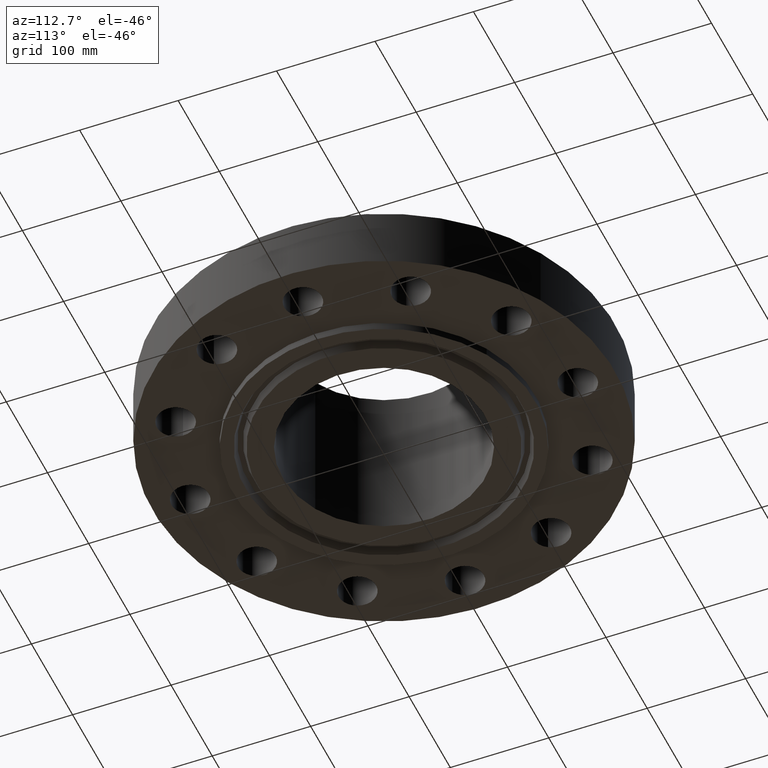
[diagram: clean part render]
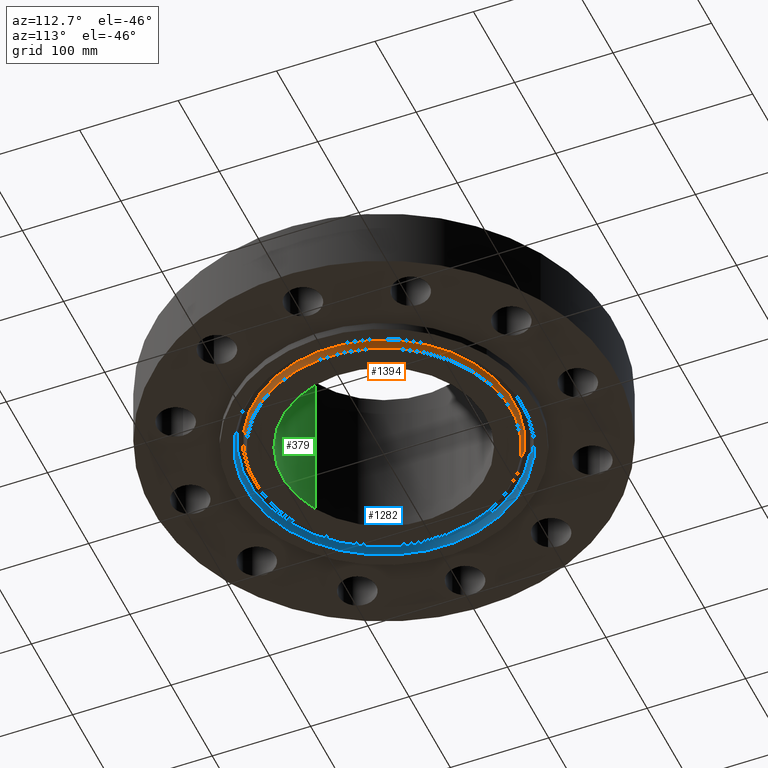
[diagram: same view with three faces highlighted in distinct colors, each labeled with its STEP entity id]
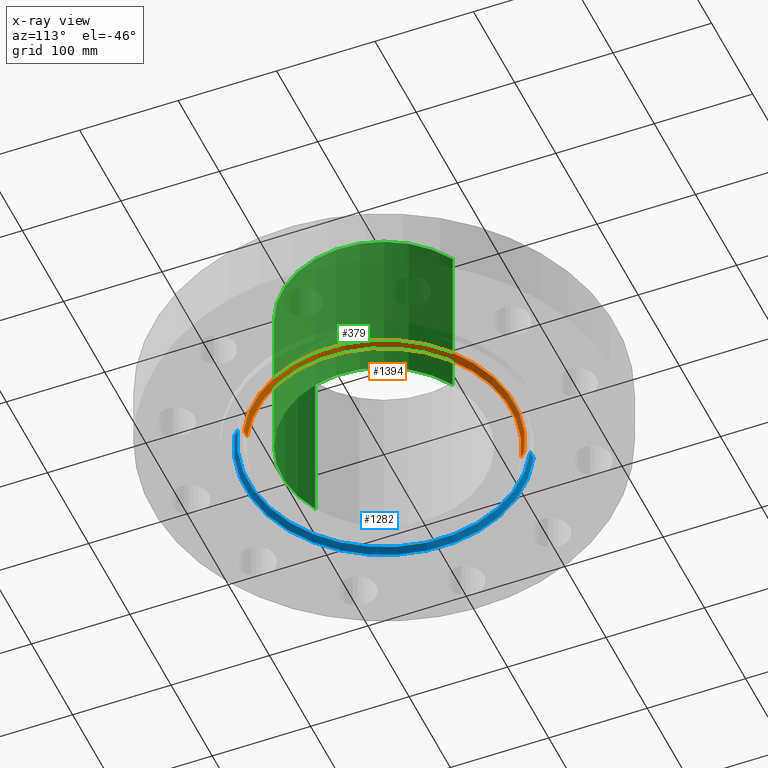
[diagram: x-ray of the same camera — body ghosted, the three highlighted faces saturated]
A machine part, auxiliary view with three faces highlighted in distinct colors.
The next image is the same camera in x-ray (body ghosted, the three faces saturated) — at least one of them is partly hidden behind the body in this view.
Their STEP definitions:

[orange] entity #1394 — the highlighted conical surface has half-angle 23 deg.
#1200=AXIS2_PLACEMENT_3D('Circle Axis2P3D',#1198,#1199,$) ;
#1344=AXIS2_PLACEMENT_3D('Circle Axis2P3D',#1342,#1343,$) ;
#1376=AXIS2_PLACEMENT_3D('Cone Axis2P3D',#1373,#1374,#1375) ;
#1198=CARTESIAN_POINT('Axis2P3D Location',(0.,-5.59482469102E-016,-0.312500000001)) ;
#1202=CARTESIAN_POINT('Vertex',(-2.4345708276,4.45645200755,-0.312500000001)) ;
#1204=CARTESIAN_POINT('Vertex',(2.4345708276,-4.45645200755,-0.312500000001)) ;
#1339=CARTESIAN_POINT('Vertex',(2.49428500255,-4.56575807162,-0.0190701156784)) ;
#1342=CARTESIAN_POINT('Axis2P3D Location',(0.,0.,-0.0190701156784)) ;
#1346=CARTESIAN_POINT('Vertex',(-2.49428500255,4.56575807162,-0.0190701156784)) ;
#1373=CARTESIAN_POINT('Axis2P3D Location',(0.,0.,-0.372500000001)) ;
#1378=CARTESIAN_POINT('Line Origine',(-2.46442791507,4.51110503958,-0.16578505784)) ;
#1383=CARTESIAN_POINT('Line Origine',(2.46442791507,-4.51110503958,-0.16578505784)) ;
#1199=DIRECTION('Axis2P3D Direction',(0.,0.,-0.0393700787402)) ;
#1343=DIRECTION('Axis2P3D Direction',(0.,0.,0.0393700787402)) ;
#1374=DIRECTION('Axis2P3D Direction',(0.,0.,0.0393700787402)) ;
#1375=DIRECTION('Axis2P3D XDirection',(-0.0188750212049,0.0345504945626,0.)) ;
#1379=DIRECTION('Vector Direction',(-0.00737505833565,0.0134999537303,0.0362403485611)) ;
#1384=DIRECTION('Vector Direction',(0.00737505833565,-0.0134999537303,0.0362403485611)) ;
#1380=VECTOR('Line Direction',#1379,0.0393700787402) ;
#1385=VECTOR('Line Direction',#1384,0.0393700787402) ;
#1389=ORIENTED_EDGE('',*,*,#1382,.F.) ;
#1390=ORIENTED_EDGE('',*,*,#1348,.F.) ;
#1391=ORIENTED_EDGE('',*,*,#1387,.T.) ;
#1392=ORIENTED_EDGE('',*,*,#1206,.F.) ;
#1394=ADVANCED_FACE('PartBody',(#1393),#1377,.T.) ;
#1201=CIRCLE('generated circle',#1200,5.07810000002) ;
#1345=CIRCLE('generated circle',#1344,5.20265359624) ;
#1377=CONICAL_SURFACE('Cone',#1376,5.05263151105,0.401425727959) ;
#1206=EDGE_CURVE('',#1203,#1205,#1201,.T.) ;
#1348=EDGE_CURVE('',#1340,#1347,#1345,.T.) ;
#1382=EDGE_CURVE('',#1347,#1203,#1381,.F.) ;
#1387=EDGE_CURVE('',#1340,#1205,#1386,.F.) ;
#1388=EDGE_LOOP('',(#1389,#1390,#1391,#1392)) ;
#1393=FACE_OUTER_BOUND('',#1388,.T.) ;
#1381=LINE('Line',#1378,#1380) ;
#1386=LINE('Line',#1383,#1385) ;
#1203=VERTEX_POINT('',#1202) ;
#1205=VERTEX_POINT('',#1204) ;
#1340=VERTEX_POINT('',#1339) ;
#1347=VERTEX_POINT('',#1346) ;

[blue] entity #1282 — the highlighted conical surface has half-angle 23 deg.
#1181=AXIS2_PLACEMENT_3D('Circle Axis2P3D',#1179,#1180,$) ;
#1228=AXIS2_PLACEMENT_3D('Circle Axis2P3D',#1226,#1227,$) ;
#1264=AXIS2_PLACEMENT_3D('Cone Axis2P3D',#1261,#1262,#1263) ;
#1179=CARTESIAN_POINT('Axis2P3D Location',(1.39870617276E-016,0.,-0.312500000001)) ;
#1183=CARTESIAN_POINT('Vertex',(2.65932552009,-4.86786271257,-0.312500000001)) ;
#1185=CARTESIAN_POINT('Vertex',(-2.65932552009,4.86786271257,-0.312500000001)) ;
#1226=CARTESIAN_POINT('Axis2P3D Location',(0.,0.,-0.0190701156784)) ;
#1230=CARTESIAN_POINT('Vertex',(-2.59961134514,4.75855664851,-0.0190701156784)) ;
#1232=CARTESIAN_POINT('Vertex',(2.59961134514,-4.75855664851,-0.0190701156784)) ;
#1261=CARTESIAN_POINT('Axis2P3D Location',(0.,0.,-0.0190701156784)) ;
#1266=CARTESIAN_POINT('Line Origine',(-2.62946843262,4.81320968054,-0.16578505784)) ;
#1271=CARTESIAN_POINT('Line Origine',(2.62946843262,-4.81320968054,-0.16578505784)) ;
#1180=DIRECTION('Axis2P3D Direction',(0.,0.,-0.0393700787402)) ;
#1227=DIRECTION('Axis2P3D Direction',(0.,0.,0.0393700787402)) ;
#1262=DIRECTION('Axis2P3D Direction',(-0.,-0.,-0.0393700787402)) ;
#1263=DIRECTION('Axis2P3D XDirection',(-0.0188750212049,0.0345504945626,0.)) ;
#1267=DIRECTION('Vector Direction',(-0.00737505833565,0.0134999537303,-0.0362403485611)) ;
#1272=DIRECTION('Vector Direction',(0.00737505833565,-0.0134999537303,-0.0362403485611)) ;
#1268=VECTOR('Line Direction',#1267,0.0393700787402) ;
#1273=VECTOR('Line Direction',#1272,0.0393700787402) ;
#1277=ORIENTED_EDGE('',*,*,#1187,.T.) ;
#1278=ORIENTED_EDGE('',*,*,#1270,.T.) ;
#1279=ORIENTED_EDGE('',*,*,#1234,.T.) ;
#1280=ORIENTED_EDGE('',*,*,#1275,.F.) ;
#1282=ADVANCED_FACE('PartBody',(#1281),#1265,.F.) ;
#1182=CIRCLE('generated circle',#1181,5.54690000002) ;
#1229=CIRCLE('generated circle',#1228,5.4223464038) ;
#1265=CONICAL_SURFACE('Cone',#1264,5.4223464038,0.401425727959) ;
#1187=EDGE_CURVE('',#1184,#1186,#1182,.T.) ;
#1234=EDGE_CURVE('',#1231,#1233,#1229,.T.) ;
#1270=EDGE_CURVE('',#1186,#1231,#1269,.F.) ;
#1275=EDGE_CURVE('',#1184,#1233,#1274,.F.) ;
#1276=EDGE_LOOP('',(#1277,#1278,#1279,#1280)) ;
#1281=FACE_OUTER_BOUND('',#1276,.T.) ;
#1269=LINE('Line',#1266,#1268) ;
#1274=LINE('Line',#1271,#1273) ;
#1184=VERTEX_POINT('',#1183) ;
#1186=VERTEX_POINT('',#1185) ;
#1231=VERTEX_POINT('',#1230) ;
#1233=VERTEX_POINT('',#1232) ;

[green] entity #379 — the highlighted cylindrical surface (partial cylindrical patch) has radius 103.188 mm, axis along (0, 0, -1).
#343=AXIS2_PLACEMENT_3D('Cylinder Axis2P3D',#340,#341,#342) ;
#347=AXIS2_PLACEMENT_3D('Circle Axis2P3D',#345,#346,$) ;
#363=AXIS2_PLACEMENT_3D('Circle Axis2P3D',#361,#362,$) ;
#340=CARTESIAN_POINT('Axis2P3D Location',(0.,0.,3.03375000001)) ;
#345=CARTESIAN_POINT('Axis2P3D Location',(0.,0.,6.38000000003)) ;
#349=CARTESIAN_POINT('Vertex',(1.94766625059,3.56517915769,6.38000000003)) ;
#351=CARTESIAN_POINT('Vertex',(-1.94766625059,-3.56517915769,6.38000000003)) ;
#354=CARTESIAN_POINT('Line Origine',(1.94766625059,3.56517915769,3.03375000001)) ;
#358=CARTESIAN_POINT('Vertex',(1.94766625059,3.56517915769,-0.312500000001)) ;
#361=CARTESIAN_POINT('Axis2P3D Location',(0.,0.,-0.312500000001)) ;
#365=CARTESIAN_POINT('Vertex',(-1.94766625059,-3.56517915769,-0.312500000001)) ;
#368=CARTESIAN_POINT('Line Origine',(-1.94766625059,-3.56517915769,3.03375000001)) ;
#341=DIRECTION('Axis2P3D Direction',(0.,0.,-0.0393700787402)) ;
#342=DIRECTION('Axis2P3D XDirection',(-0.0188750212049,-0.0345504945626,0.)) ;
#346=DIRECTION('Axis2P3D Direction',(0.,0.,-0.0393700787402)) ;
#355=DIRECTION('Vector Direction',(0.,0.,-0.0393700787402)) ;
#362=DIRECTION('Axis2P3D Direction',(0.,0.,-0.0393700787402)) ;
#369=DIRECTION('Vector Direction',(0.,0.,-0.0393700787402)) ;
#356=VECTOR('Line Direction',#355,0.0393700787402) ;
#370=VECTOR('Line Direction',#369,0.0393700787402) ;
#374=ORIENTED_EDGE('',*,*,#353,.F.) ;
#375=ORIENTED_EDGE('',*,*,#360,.T.) ;
#376=ORIENTED_EDGE('',*,*,#367,.T.) ;
#377=ORIENTED_EDGE('',*,*,#372,.F.) ;
#379=ADVANCED_FACE('PartBody',(#378),#344,.F.) ;
#348=CIRCLE('generated circle',#347,4.06250000002) ;
#364=CIRCLE('generated circle',#363,4.06250000002) ;
#344=CYLINDRICAL_SURFACE('generated cylinder',#343,4.06250000002) ;
#353=EDGE_CURVE('',#350,#352,#348,.T.) ;
#360=EDGE_CURVE('',#350,#359,#357,.T.) ;
#367=EDGE_CURVE('',#359,#366,#364,.T.) ;
#372=EDGE_CURVE('',#352,#366,#371,.T.) ;
#373=EDGE_LOOP('',(#374,#375,#376,#377)) ;
#378=FACE_OUTER_BOUND('',#373,.T.) ;
#357=LINE('Line',#354,#356) ;
#371=LINE('Line',#368,#370) ;
#350=VERTEX_POINT('',#349) ;
#352=VERTEX_POINT('',#351) ;
#359=VERTEX_POINT('',#358) ;
#366=VERTEX_POINT('',#365) ;